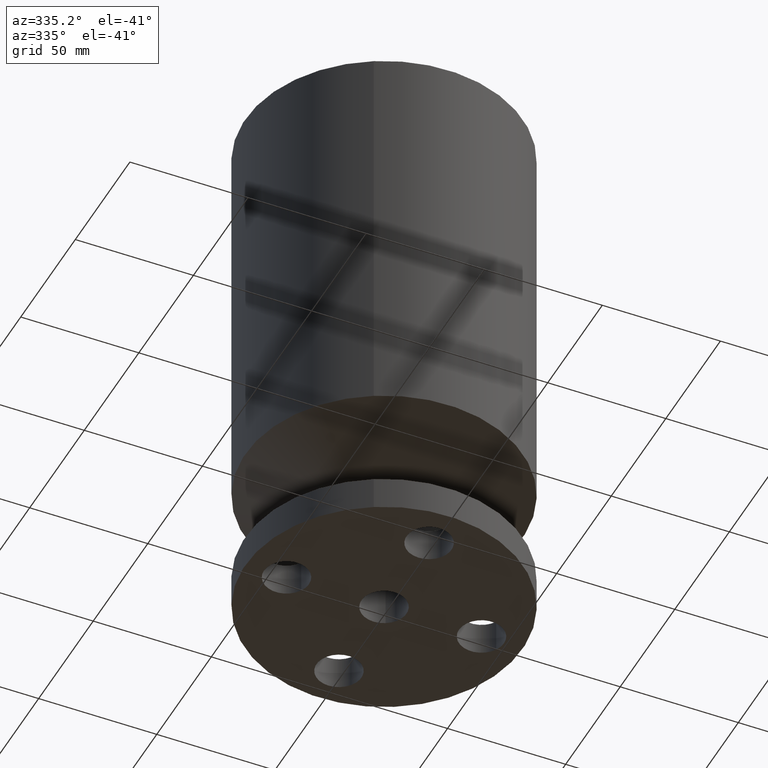
[diagram: clean part render]
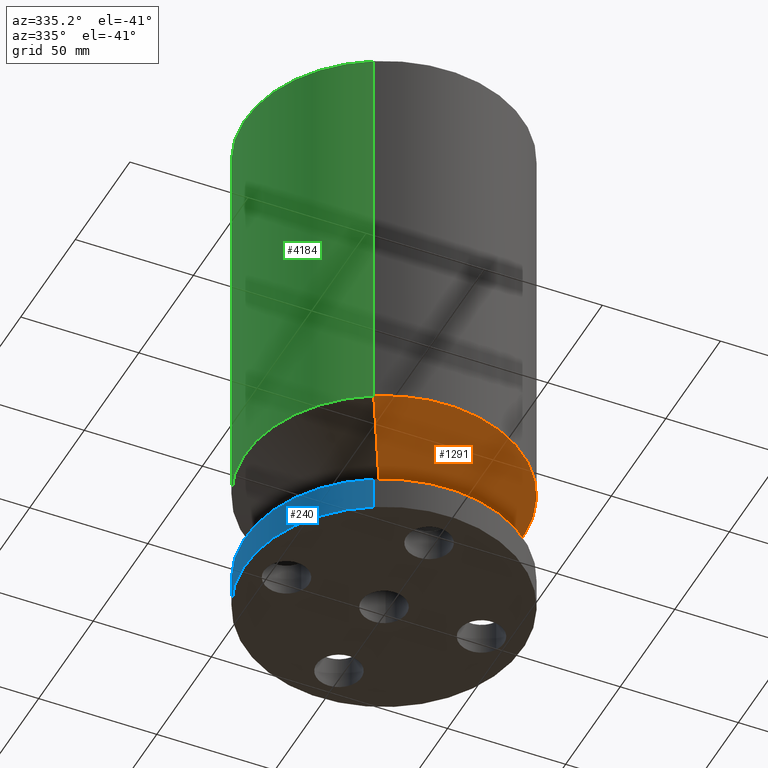
[diagram: same view with three faces highlighted in distinct colors, each labeled with its STEP entity id]
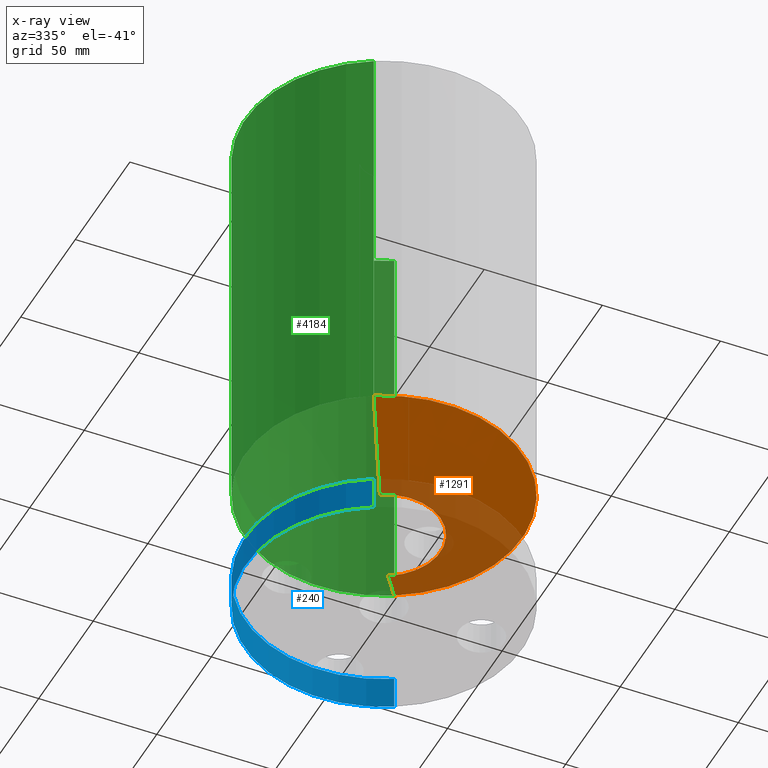
[diagram: x-ray of the same camera — body ghosted, the three highlighted faces saturated]
A machine part, auxiliary view with three faces highlighted in distinct colors.
The next image is the same camera in x-ray (body ghosted, the three faces saturated) — at least one of them is partly hidden behind the body in this view.
Their STEP definitions:

[orange] entity #1291 — the highlighted conical surface has half-angle 60 deg.
#719=AXIS2_PLACEMENT_3D('Circle Axis2P3D',#717,#718,$) ;
#1264=AXIS2_PLACEMENT_3D('Cone Axis2P3D',#1261,#1262,#1263) ;
#1275=AXIS2_PLACEMENT_3D('Circle Axis2P3D',#1273,#1274,$) ;
#714=CARTESIAN_POINT('Vertex',(0.45066000629,0.82492760818,1.43750000001)) ;
#717=CARTESIAN_POINT('Axis2P3D Location',(0.,0.,1.43750000001)) ;
#721=CARTESIAN_POINT('Vertex',(-0.45066000629,-0.82492760818,1.43750000001)) ;
#1261=CARTESIAN_POINT('Axis2P3D Location',(0.,0.,1.43750000001)) ;
#1266=CARTESIAN_POINT('Line Origine',(0.779066500235,1.42607166308,1.8329849344)) ;
#1270=CARTESIAN_POINT('Vertex',(1.10747299418,2.02721571797,2.2284698688)) ;
#1273=CARTESIAN_POINT('Axis2P3D Location',(0.,0.,2.2284698688)) ;
#1277=CARTESIAN_POINT('Vertex',(-1.10747299418,-2.02721571797,2.2284698688)) ;
#1280=CARTESIAN_POINT('Line Origine',(-0.779066500235,-1.42607166308,1.8329849344)) ;
#718=DIRECTION('Axis2P3D Direction',(0.,0.,-0.0393700787402)) ;
#1262=DIRECTION('Axis2P3D Direction',(-0.,-0.,0.0393700787402)) ;
#1263=DIRECTION('Axis2P3D XDirection',(0.0188750212049,0.0345504945626,0.)) ;
#1267=DIRECTION('Vector Direction',(0.0163462478604,0.0299216060045,0.0196850393701)) ;
#1274=DIRECTION('Axis2P3D Direction',(-0.,0.,0.0393700787402)) ;
#1281=DIRECTION('Vector Direction',(-0.0163462478604,-0.0299216060045,0.0196850393701)) ;
#1268=VECTOR('Line Direction',#1267,0.0393700787402) ;
#1282=VECTOR('Line Direction',#1281,0.0393700787402) ;
#1286=ORIENTED_EDGE('',*,*,#723,.F.) ;
#1287=ORIENTED_EDGE('',*,*,#1272,.T.) ;
#1288=ORIENTED_EDGE('',*,*,#1279,.T.) ;
#1289=ORIENTED_EDGE('',*,*,#1284,.F.) ;
#1291=ADVANCED_FACE('PartBody',(#1290),#1265,.T.) ;
#720=CIRCLE('generated circle',#719,0.940000000004) ;
#1276=CIRCLE('generated circle',#1275,2.31000000001) ;
#1265=CONICAL_SURFACE('Cone',#1264,0.940000000004,1.0471975512) ;
#723=EDGE_CURVE('',#715,#722,#720,.T.) ;
#1272=EDGE_CURVE('',#715,#1271,#1269,.T.) ;
#1279=EDGE_CURVE('',#1271,#1278,#1276,.F.) ;
#1284=EDGE_CURVE('',#722,#1278,#1283,.T.) ;
#1285=EDGE_LOOP('',(#1286,#1287,#1288,#1289)) ;
#1290=FACE_OUTER_BOUND('',#1285,.T.) ;
#1269=LINE('Line',#1266,#1268) ;
#1283=LINE('Line',#1280,#1282) ;
#715=VERTEX_POINT('',#714) ;
#722=VERTEX_POINT('',#721) ;
#1271=VERTEX_POINT('',#1270) ;
#1278=VERTEX_POINT('',#1277) ;

[blue] entity #240 — the highlighted cylindrical surface (partial cylindrical patch) has radius 58.674 mm, axis along (0, 0, -1).
#91=AXIS2_PLACEMENT_3D('Circle Axis2P3D',#89,#90,$) ;
#213=AXIS2_PLACEMENT_3D('Cylinder Axis2P3D',#210,#211,#212) ;
#217=AXIS2_PLACEMENT_3D('Circle Axis2P3D',#215,#216,$) ;
#84=CARTESIAN_POINT('Vertex',(1.10747299418,2.02721571797,0.557500000002)) ;
#86=CARTESIAN_POINT('Vertex',(-1.10747299418,-2.02721571797,0.557500000002)) ;
#89=CARTESIAN_POINT('Axis2P3D Location',(0.,0.,0.557500000002)) ;
#210=CARTESIAN_POINT('Axis2P3D Location',(0.,0.,4.43750000002)) ;
#215=CARTESIAN_POINT('Axis2P3D Location',(0.,0.,-5.59482469102E-016)) ;
#219=CARTESIAN_POINT('Vertex',(-1.10747299418,-2.02721571797,-5.59482469102E-016)) ;
#221=CARTESIAN_POINT('Vertex',(1.10747299418,2.02721571797,-5.59482469102E-016)) ;
#224=CARTESIAN_POINT('Line Origine',(-1.10747299418,-2.02721571797,5.58298493442)) ;
#229=CARTESIAN_POINT('Line Origine',(1.10747299418,2.02721571797,5.58298493442)) ;
#90=DIRECTION('Axis2P3D Direction',(0.,0.,-0.0393700787402)) ;
#211=DIRECTION('Axis2P3D Direction',(0.,0.,-0.0393700787402)) ;
#212=DIRECTION('Axis2P3D XDirection',(-0.0188750212049,-0.0345504945626,0.)) ;
#216=DIRECTION('Axis2P3D Direction',(0.,0.,-0.0393700787402)) ;
#225=DIRECTION('Vector Direction',(0.,0.,-0.0393700787402)) ;
#230=DIRECTION('Vector Direction',(0.,0.,-0.0393700787402)) ;
#226=VECTOR('Line Direction',#225,0.0393700787402) ;
#231=VECTOR('Line Direction',#230,0.0393700787402) ;
#235=ORIENTED_EDGE('',*,*,#223,.F.) ;
#236=ORIENTED_EDGE('',*,*,#228,.T.) ;
#237=ORIENTED_EDGE('',*,*,#93,.T.) ;
#238=ORIENTED_EDGE('',*,*,#233,.F.) ;
#240=ADVANCED_FACE('PartBody',(#239),#214,.T.) ;
#92=CIRCLE('generated circle',#91,2.31000000001) ;
#218=CIRCLE('generated circle',#217,2.31000000001) ;
#214=CYLINDRICAL_SURFACE('generated cylinder',#213,2.31000000001) ;
#93=EDGE_CURVE('',#87,#85,#92,.T.) ;
#223=EDGE_CURVE('',#220,#222,#218,.T.) ;
#228=EDGE_CURVE('',#220,#87,#227,.F.) ;
#233=EDGE_CURVE('',#222,#85,#232,.F.) ;
#234=EDGE_LOOP('',(#235,#236,#237,#238)) ;
#239=FACE_OUTER_BOUND('',#234,.T.) ;
#227=LINE('Line',#224,#226) ;
#232=LINE('Line',#229,#231) ;
#85=VERTEX_POINT('',#84) ;
#87=VERTEX_POINT('',#86) ;
#220=VERTEX_POINT('',#219) ;
#222=VERTEX_POINT('',#221) ;

[green] entity #4184 — the highlighted cylindrical surface (partial cylindrical patch) has radius 58.674 mm, axis along (0, 0, -1).
#213=AXIS2_PLACEMENT_3D('Cylinder Axis2P3D',#210,#211,#212) ;
#1294=AXIS2_PLACEMENT_3D('Circle Axis2P3D',#1292,#1293,$) ;
#4175=AXIS2_PLACEMENT_3D('Circle Axis2P3D',#4173,#4174,$) ;
#210=CARTESIAN_POINT('Axis2P3D Location',(0.,0.,4.43750000002)) ;
#1270=CARTESIAN_POINT('Vertex',(1.10747299418,2.02721571797,2.2284698688)) ;
#1277=CARTESIAN_POINT('Vertex',(-1.10747299418,-2.02721571797,2.2284698688)) ;
#1292=CARTESIAN_POINT('Axis2P3D Location',(0.,0.,2.2284698688)) ;
#4147=CARTESIAN_POINT('Line Origine',(1.10747299418,2.02721571797,5.58298493442)) ;
#4151=CARTESIAN_POINT('Vertex',(1.10747299418,2.02721571797,8.93750000004)) ;
#4158=CARTESIAN_POINT('Vertex',(-1.10747299418,-2.02721571797,8.93750000004)) ;
#4161=CARTESIAN_POINT('Line Origine',(-1.10747299418,-2.02721571797,5.58298493442)) ;
#4173=CARTESIAN_POINT('Axis2P3D Location',(0.,0.,8.93750000004)) ;
#211=DIRECTION('Axis2P3D Direction',(0.,0.,-0.0393700787402)) ;
#212=DIRECTION('Axis2P3D XDirection',(-0.0188750212049,-0.0345504945626,0.)) ;
#1293=DIRECTION('Axis2P3D Direction',(-0.,0.,0.0393700787402)) ;
#4148=DIRECTION('Vector Direction',(0.,0.,-0.0393700787402)) ;
#4162=DIRECTION('Vector Direction',(0.,0.,-0.0393700787402)) ;
#4174=DIRECTION('Axis2P3D Direction',(0.,0.,-0.0393700787402)) ;
#4149=VECTOR('Line Direction',#4148,0.0393700787402) ;
#4163=VECTOR('Line Direction',#4162,0.0393700787402) ;
#4179=ORIENTED_EDGE('',*,*,#1296,.F.) ;
#4180=ORIENTED_EDGE('',*,*,#4165,.T.) ;
#4181=ORIENTED_EDGE('',*,*,#4177,.T.) ;
#4182=ORIENTED_EDGE('',*,*,#4153,.F.) ;
#4184=ADVANCED_FACE('PartBody',(#4183),#214,.T.) ;
#1295=CIRCLE('generated circle',#1294,2.31000000001) ;
#4176=CIRCLE('generated circle',#4175,2.31000000001) ;
#214=CYLINDRICAL_SURFACE('generated cylinder',#213,2.31000000001) ;
#1296=EDGE_CURVE('',#1278,#1271,#1295,.F.) ;
#4153=EDGE_CURVE('',#1271,#4152,#4150,.F.) ;
#4165=EDGE_CURVE('',#1278,#4159,#4164,.F.) ;
#4177=EDGE_CURVE('',#4159,#4152,#4176,.T.) ;
#4178=EDGE_LOOP('',(#4179,#4180,#4181,#4182)) ;
#4183=FACE_OUTER_BOUND('',#4178,.T.) ;
#4150=LINE('Line',#4147,#4149) ;
#4164=LINE('Line',#4161,#4163) ;
#1271=VERTEX_POINT('',#1270) ;
#1278=VERTEX_POINT('',#1277) ;
#4152=VERTEX_POINT('',#4151) ;
#4159=VERTEX_POINT('',#4158) ;